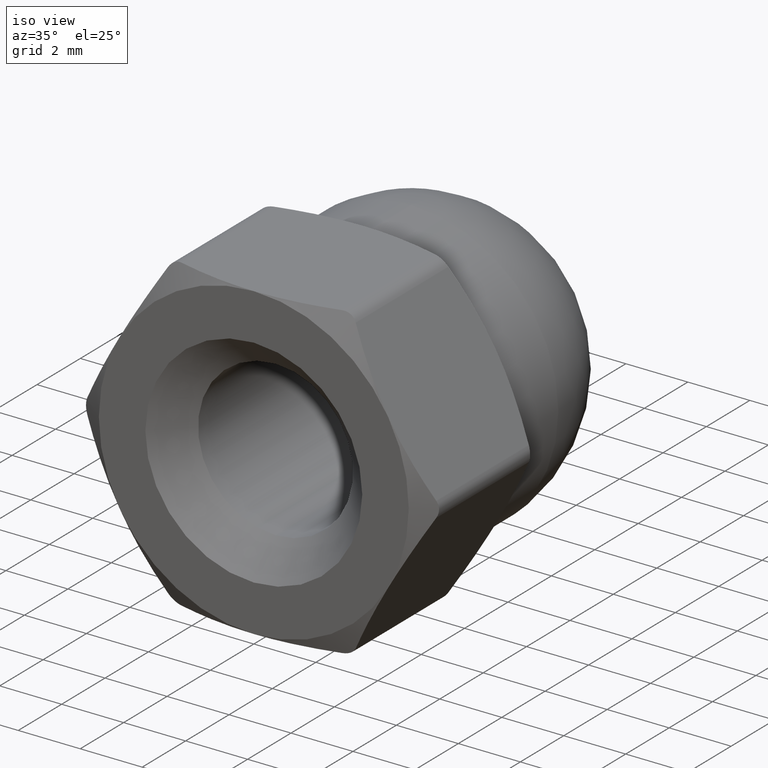
[diagram: clean part render]
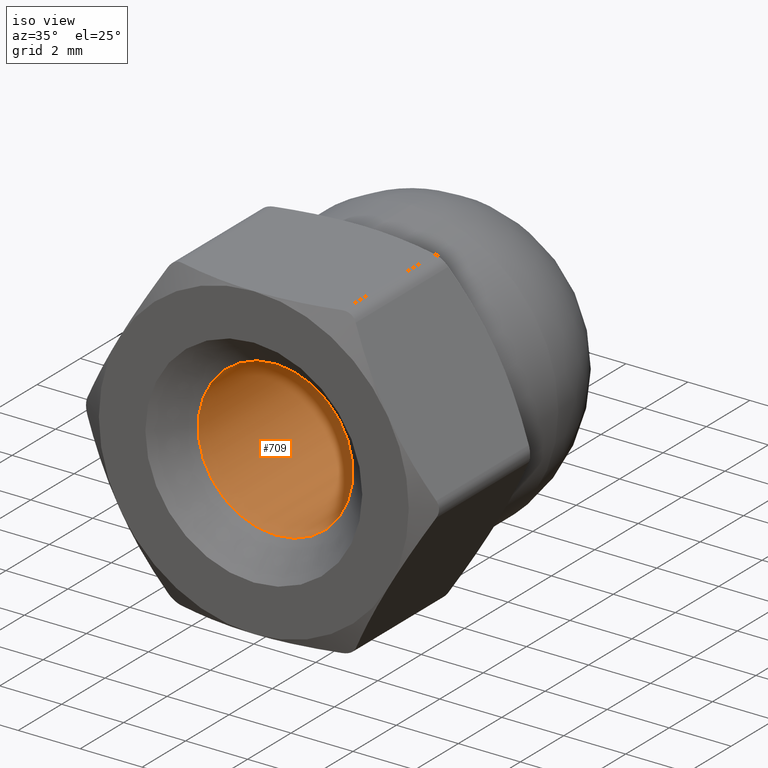
[diagram: same view with one face highlighted and labeled with its STEP entity id]
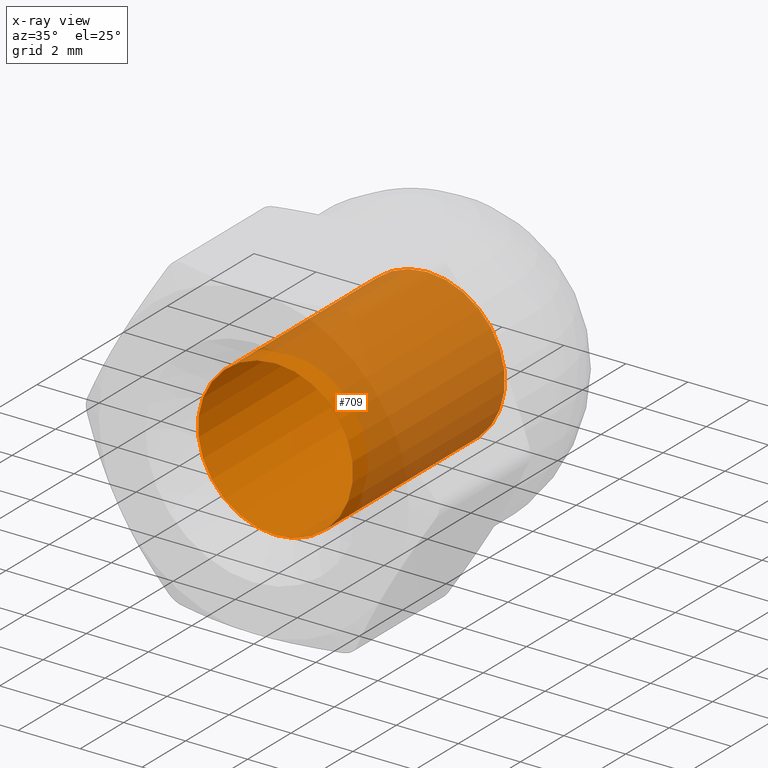
[diagram: x-ray of the same camera — body ghosted, the highlighted face saturated]
A machine part, iso view. The second image highlights one B-rep face of the part: STEP entity #709.
The next image is the same camera in x-ray: the body ghosted, the highlighted face saturated — about 56% of this face is hidden behind the body in this view.
In plain terms, the highlighted cylindrical surface (bore or boss wall) has radius 2.5 mm, axis along (-0, -1, -0).
Its self-contained STEP definition (entity closure, byte-faithful):
#118 = CARTESIAN_POINT ( 'NONE',  ( 0.0000000000000000000, 1.000000000000003100, 0.0000000000000000000 ) ) ;
#124 = ORIENTED_EDGE ( 'NONE', *, *, #1275, .F. ) ;
#174 = CYLINDRICAL_SURFACE ( 'NONE', #965, 2.499999999999998200 ) ;
#192 = AXIS2_PLACEMENT_3D ( 'NONE', #118, #202, #994 ) ;
#195 = CARTESIAN_POINT ( 'NONE',  ( 0.0000000000000000000, 0.0000000000000000000, 0.0000000000000000000 ) ) ;
#202 = DIRECTION ( 'NONE',  ( 0.0000000000000000000, -1.000000000000000000, 0.0000000000000000000 ) ) ;
#251 = EDGE_LOOP ( 'NONE', ( #1002 ) ) ;
#373 = CARTESIAN_POINT ( 'NONE',  ( 0.0000000000000000000, 1.000000000000003100, 2.499999999999998200 ) ) ;
#430 = FACE_OUTER_BOUND ( 'NONE', #251, .T. ) ;
#440 = FACE_OUTER_BOUND ( 'NONE', #984, .T. ) ;
#470 = DIRECTION ( 'NONE',  ( 0.0000000000000000000, 0.0000000000000000000, -1.000000000000000000 ) ) ;
#477 = DIRECTION ( 'NONE',  ( 0.0000000000000000000, 0.0000000000000000000, -1.000000000000000000 ) ) ;
#547 = CIRCLE ( 'NONE', #818, 2.499999999999997800 ) ;
#562 = CARTESIAN_POINT ( 'NONE',  ( 0.0000000000000000000, 8.000000000000000000, 0.0000000000000000000 ) ) ;
#568 = DIRECTION ( 'NONE',  ( -0.0000000000000000000, -1.000000000000000000, -0.0000000000000000000 ) ) ;
#640 = EDGE_CURVE ( 'NONE', #1066, #1066, #990, .T. ) ;
#641 = VERTEX_POINT ( 'NONE', #663 ) ;
#663 = CARTESIAN_POINT ( 'NONE',  ( 0.0000000000000000000, 8.000000000000000000, -2.499999999999997800 ) ) ;
#709 = ADVANCED_FACE ( 'NONE', ( #430, #440 ), #174, .F. ) ;
#818 = AXIS2_PLACEMENT_3D ( 'NONE', #562, #1089, #477 ) ;
#965 = AXIS2_PLACEMENT_3D ( 'NONE', #195, #568, #470 ) ;
#984 = EDGE_LOOP ( 'NONE', ( #124 ) ) ;
#990 = CIRCLE ( 'NONE', #192, 2.499999999999998200 ) ;
#994 = DIRECTION ( 'NONE',  ( 0.0000000000000000000, 0.0000000000000000000, 1.000000000000000000 ) ) ;
#1002 = ORIENTED_EDGE ( 'NONE', *, *, #640, .T. ) ;
#1066 = VERTEX_POINT ( 'NONE', #373 ) ;
#1089 = DIRECTION ( 'NONE',  ( -0.0000000000000000000, -1.000000000000000000, -0.0000000000000000000 ) ) ;
#1275 = EDGE_CURVE ( 'NONE', #641, #641, #547, .T. ) ;